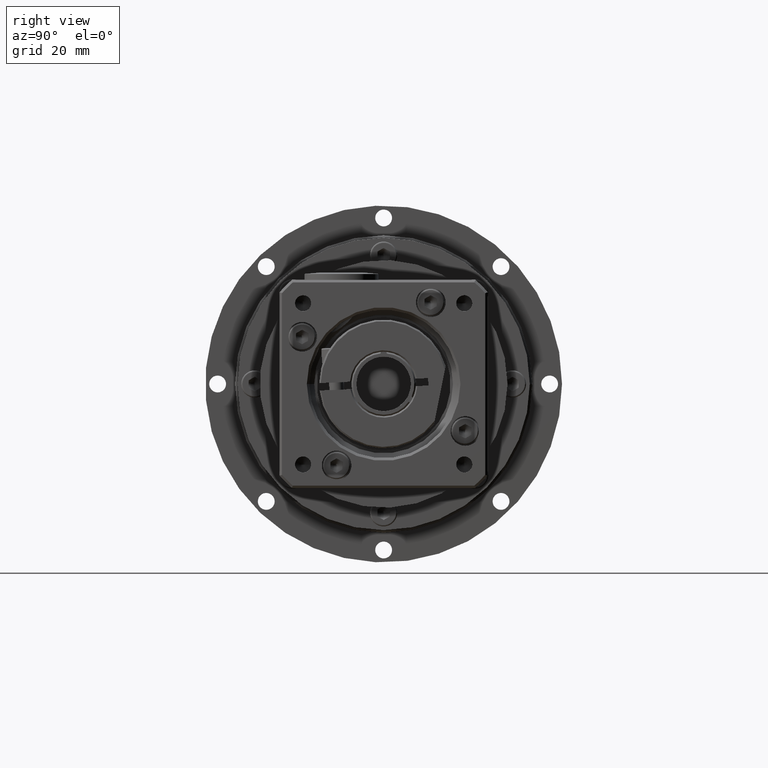
[diagram: clean part render]
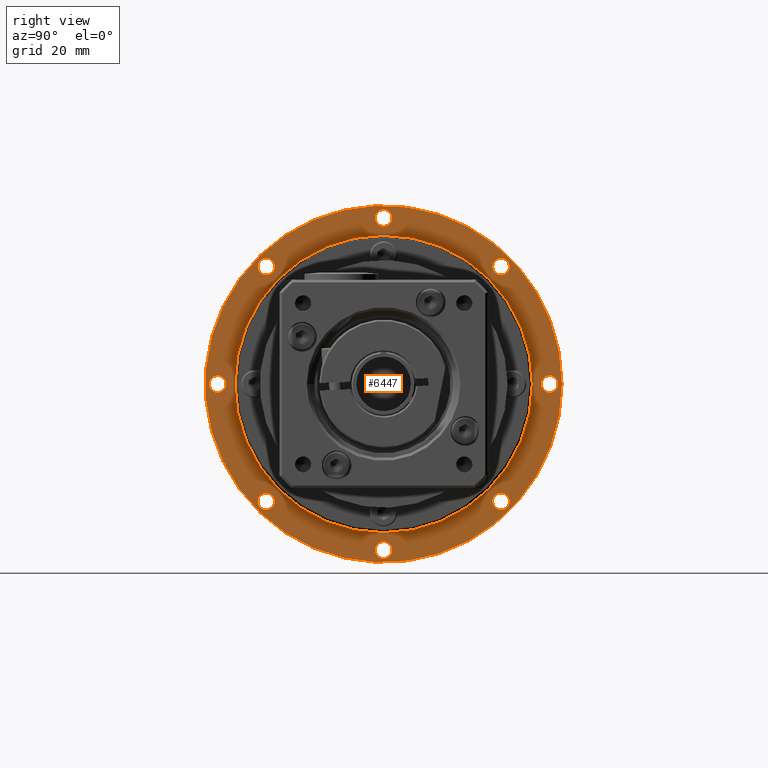
[diagram: same view with one face highlighted and labeled with its STEP entity id]
A machine part, right view. The second image highlights one B-rep face of the part: STEP entity #6447.
In plain terms, the highlighted planar face has unit normal (1, -0, 0).
Its self-contained STEP definition (entity closure, byte-faithful):
#1427=FACE_BOUND('',#2384,.T.);
#1428=FACE_BOUND('',#2385,.T.);
#1429=FACE_BOUND('',#2386,.T.);
#1430=FACE_BOUND('',#2387,.T.);
#1431=FACE_BOUND('',#2388,.T.);
#1432=FACE_BOUND('',#2389,.T.);
#1433=FACE_BOUND('',#2390,.T.);
#1434=FACE_BOUND('',#2391,.T.);
#1435=FACE_BOUND('',#2392,.T.);
#1795=FACE_OUTER_BOUND('',#2383,.T.);
#2383=EDGE_LOOP('',(#5231));
#2384=EDGE_LOOP('',(#5232));
#2385=EDGE_LOOP('',(#5233));
#2386=EDGE_LOOP('',(#5234));
#2387=EDGE_LOOP('',(#5235));
#2388=EDGE_LOOP('',(#5236));
#2389=EDGE_LOOP('',(#5237));
#2390=EDGE_LOOP('',(#5238));
#2391=EDGE_LOOP('',(#5239));
#2392=EDGE_LOOP('',(#5240));
#2934=CIRCLE('',#7128,30.);
#2935=CIRCLE('',#7130,36.);
#2936=CIRCLE('',#7131,1.7);
#2937=CIRCLE('',#7132,1.7);
#2938=CIRCLE('',#7133,1.7);
#2939=CIRCLE('',#7134,1.7);
#2940=CIRCLE('',#7135,1.7);
#2941=CIRCLE('',#7136,1.7);
#2942=CIRCLE('',#7137,1.7);
#2943=CIRCLE('',#7138,1.7);
#3396=VERTEX_POINT('',#10576);
#3397=VERTEX_POINT('',#10579);
#3398=VERTEX_POINT('',#10581);
#3399=VERTEX_POINT('',#10583);
#3400=VERTEX_POINT('',#10585);
#3401=VERTEX_POINT('',#10587);
#3402=VERTEX_POINT('',#10589);
#3403=VERTEX_POINT('',#10591);
#3404=VERTEX_POINT('',#10593);
#3405=VERTEX_POINT('',#10595);
#4081=EDGE_CURVE('',#3396,#3396,#2934,.T.);
#4082=EDGE_CURVE('',#3397,#3397,#2935,.T.);
#4083=EDGE_CURVE('',#3398,#3398,#2936,.T.);
#4084=EDGE_CURVE('',#3399,#3399,#2937,.T.);
#4085=EDGE_CURVE('',#3400,#3400,#2938,.T.);
#4086=EDGE_CURVE('',#3401,#3401,#2939,.T.);
#4087=EDGE_CURVE('',#3402,#3402,#2940,.T.);
#4088=EDGE_CURVE('',#3403,#3403,#2941,.T.);
#4089=EDGE_CURVE('',#3404,#3404,#2942,.T.);
#4090=EDGE_CURVE('',#3405,#3405,#2943,.T.);
#5231=ORIENTED_EDGE('',*,*,#4082,.T.);
#5232=ORIENTED_EDGE('',*,*,#4083,.T.);
#5233=ORIENTED_EDGE('',*,*,#4084,.T.);
#5234=ORIENTED_EDGE('',*,*,#4085,.T.);
#5235=ORIENTED_EDGE('',*,*,#4086,.T.);
#5236=ORIENTED_EDGE('',*,*,#4087,.T.);
#5237=ORIENTED_EDGE('',*,*,#4088,.T.);
#5238=ORIENTED_EDGE('',*,*,#4089,.T.);
#5239=ORIENTED_EDGE('',*,*,#4090,.T.);
#5240=ORIENTED_EDGE('',*,*,#4081,.F.);
#6117=PLANE('',#7129);
#6447=ADVANCED_FACE('',(#1795,#1427,#1428,#1429,#1430,#1431,#1432,#1433,
#1434,#1435),#6117,.T.);
#7128=AXIS2_PLACEMENT_3D('',#10577,#8515,#8516);
#7129=AXIS2_PLACEMENT_3D('',#10578,#8517,#8518);
#7130=AXIS2_PLACEMENT_3D('',#10580,#8519,#8520);
#7131=AXIS2_PLACEMENT_3D('',#10582,#8521,#8522);
#7132=AXIS2_PLACEMENT_3D('',#10584,#8523,#8524);
#7133=AXIS2_PLACEMENT_3D('',#10586,#8525,#8526);
#7134=AXIS2_PLACEMENT_3D('',#10588,#8527,#8528);
#7135=AXIS2_PLACEMENT_3D('',#10590,#8529,#8530);
#7136=AXIS2_PLACEMENT_3D('',#10592,#8531,#8532);
#7137=AXIS2_PLACEMENT_3D('',#10594,#8533,#8534);
#7138=AXIS2_PLACEMENT_3D('',#10596,#8535,#8536);
#8515=DIRECTION('center_axis',(1.,-2.06779038336434E-15,1.83973716379629E-15));
#8516=DIRECTION('ref_axis',(1.83973716379629E-15,5.03803729503249E-16,-1.));
#8517=DIRECTION('center_axis',(1.,-2.06779038336434E-15,1.83973716379629E-15));
#8518=DIRECTION('ref_axis',(1.77635683940025E-15,7.105427357601E-16,-1.));
#8519=DIRECTION('center_axis',(1.,-2.06779038336434E-15,1.83973716379629E-15));
#8520=DIRECTION('ref_axis',(1.83973716379629E-15,5.03803729503249E-16,-1.));
#8521=DIRECTION('center_axis',(-1.,2.06779038336434E-15,-1.83973716379629E-15));
#8522=DIRECTION('ref_axis',(-1.61257978027994E-16,-0.707106781186547,-0.707106781186548));
#8523=DIRECTION('center_axis',(-1.,2.06779038336434E-15,-1.83973716379629E-15));
#8524=DIRECTION('ref_axis',(-2.06779038336434E-15,-1.,-3.40535637646612E-16));
#8525=DIRECTION('center_axis',(-1.,2.06779038336434E-15,-1.83973716379629E-15));
#8526=DIRECTION('ref_axis',(-2.76303922627052E-15,-0.707106781186548,0.707106781186547));
#8527=DIRECTION('center_axis',(-1.,2.06779038336434E-15,-1.83973716379629E-15));
#8528=DIRECTION('ref_axis',(-1.83973716379629E-15,-3.40535637646608E-16,
1.));
#8529=DIRECTION('center_axis',(-1.,2.06779038336434E-15,-1.83973716379629E-15));
#8530=DIRECTION('ref_axis',(1.61257978027993E-16,0.707106781186547,0.707106781186548));
#8531=DIRECTION('center_axis',(-1.,2.06779038336434E-15,-1.83973716379629E-15));
#8532=DIRECTION('ref_axis',(2.06779038336434E-15,1.,5.03803729503253E-16));
#8533=DIRECTION('center_axis',(-1.,2.06779038336434E-15,-1.83973716379629E-15));
#8534=DIRECTION('ref_axis',(2.76303922627052E-15,0.707106781186548,-0.707106781186547));
#8535=DIRECTION('center_axis',(-1.,2.06779038336434E-15,-1.83973716379629E-15));
#8536=DIRECTION('ref_axis',(1.83973716379629E-15,5.03803729503249E-16,-1.));
#10576=CARTESIAN_POINT('',(-19.6735513823495,34.4051270884581,-61.3851948421756));
#10577=CARTESIAN_POINT('Origin',(-19.6735513823496,4.40512708845812,-61.3851948421756));
#10578=CARTESIAN_POINT('Origin',(-19.6735513823495,34.4051270884581,-61.3851948421756));
#10579=CARTESIAN_POINT('',(-19.6735513823495,40.4051270884581,-61.3851948421756));
#10580=CARTESIAN_POINT('Origin',(-19.6735513823496,4.40512708845812,-61.3851948421756));
#10581=CARTESIAN_POINT('',(-19.6735513823495,26.8911227301903,-86.2753535399421));
#10582=CARTESIAN_POINT('Origin',(-19.6735513823495,28.0932042582075,-85.073272011925));
#10583=CARTESIAN_POINT('',(-19.6735513823495,2.70512708845814,-94.8851948421756));
#10584=CARTESIAN_POINT('Origin',(-19.6735513823495,4.40512708845813,-94.8851948421756));
#10585=CARTESIAN_POINT('',(-19.6735513823496,-20.4850316093083,-83.8711904839079));
#10586=CARTESIAN_POINT('Origin',(-19.6735513823496,-19.2829500812912,-85.073272011925));
#10587=CARTESIAN_POINT('',(-19.6735513823497,-29.0948729115419,-59.6851948421757));
#10588=CARTESIAN_POINT('Origin',(-19.6735513823497,-29.0948729115419,-61.3851948421757));
#10589=CARTESIAN_POINT('',(-19.6735513823497,-18.0808685532741,-36.4950361444092));
#10590=CARTESIAN_POINT('Origin',(-19.6735513823497,-19.2829500812912,-37.6971176724263));
#10591=CARTESIAN_POINT('',(-19.6735513823496,6.1051270884581,-27.8851948421756));
#10592=CARTESIAN_POINT('Origin',(-19.6735513823496,4.40512708845811,-27.8851948421756));
#10593=CARTESIAN_POINT('',(-19.6735513823496,29.2952857862246,-38.8991992004434));
#10594=CARTESIAN_POINT('Origin',(-19.6735513823496,28.0932042582075,-37.6971176724263));
#10595=CARTESIAN_POINT('',(-19.6735513823495,37.9051270884581,-63.0851948421756));
#10596=CARTESIAN_POINT('Origin',(-19.6735513823495,37.9051270884581,-61.3851948421756));